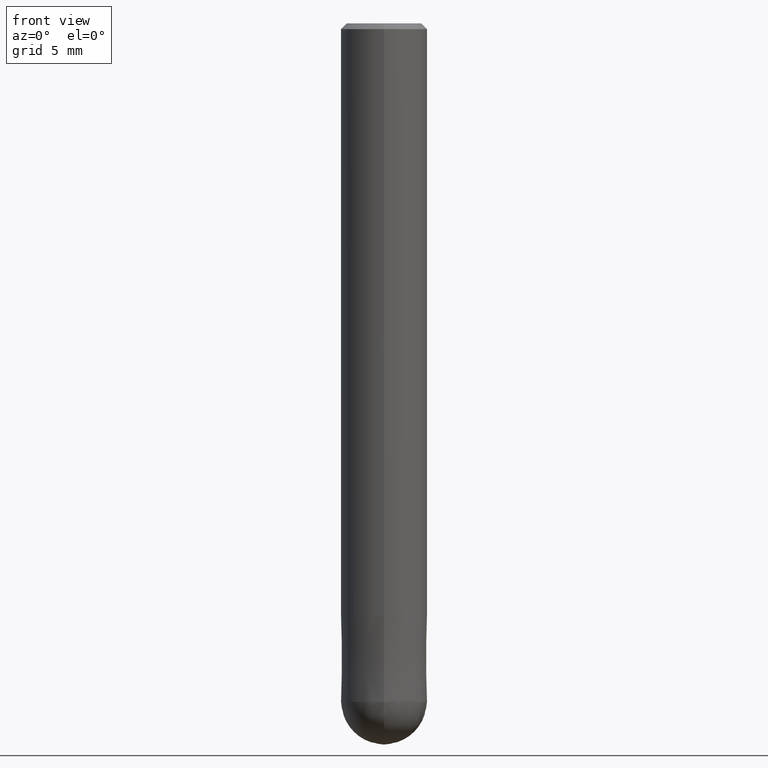
[diagram: clean part render]
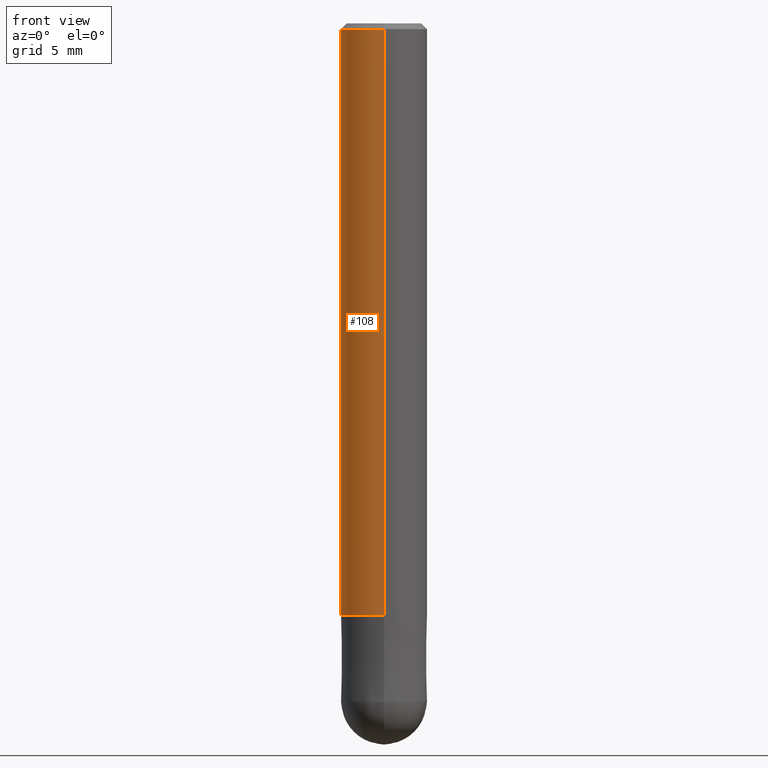
[diagram: same view with one face highlighted and labeled with its STEP entity id]
A machine part, front view. The second image highlights one B-rep face of the part: STEP entity #108.
In plain terms, the highlighted cylindrical surface (partial cylindrical patch) has radius 3 mm, axis along (-0, -0, 1).
Its self-contained STEP definition (entity closure, byte-faithful):
#80=VERTEX_POINT('',#176);
#82=VERTEX_POINT('',#178);
#98=VERTEX_POINT('',#195);
#102=EDGE_CURVE('',#130,#98,#200,.T.);
#108=ADVANCED_FACE('',(#208),#209,.T.);
#116=EDGE_CURVE('',#82,#130,#217,.T.);
#126=EDGE_CURVE('',#82,#80,#228,.T.);
#128=EDGE_CURVE('',#98,#80,#230,.T.);
#130=VERTEX_POINT('',#232);
#176=CARTESIAN_POINT('',(0.0,3.0,-41.0));
#178=CARTESIAN_POINT('',(3.67381906146713E-016,-3.0,-41.0));
#195=CARTESIAN_POINT('',(0.0,3.0,-0.399999999999999));
#200=CIRCLE('',#304,3.0);
#208=FACE_OUTER_BOUND('',#312,.T.);
#209=CYLINDRICAL_SURFACE('',#313,3.0);
#217=LINE('',#322,#323);
#228=CIRCLE('',#338,3.0);
#230=LINE('',#341,#342);
#232=CARTESIAN_POINT('',(3.67381906146713E-016,-3.0,-0.399999999999999));
#304=AXIS2_PLACEMENT_3D('',#407,#408,#409);
#312=EDGE_LOOP('',(#425,#426,#427,#428));
#313=AXIS2_PLACEMENT_3D('',#429,#430,#431);
#322=CARTESIAN_POINT('',(3.67381906146713E-016,-3.0,-20.7));
#323=VECTOR('',#436,1.0);
#338=AXIS2_PLACEMENT_3D('',#454,#455,#456);
#341=CARTESIAN_POINT('',(-3.67381906146713E-016,3.0,-20.7));
#342=VECTOR('',#457,1.0);
#407=CARTESIAN_POINT('',(0.0,0.0,-0.399999999999999));
#408=DIRECTION('',(0.0,0.0,-1.0));
#409=DIRECTION('',(0.0,1.0,0.0));
#425=ORIENTED_EDGE('',*,*,#128,.T.);
#426=ORIENTED_EDGE('',*,*,#126,.F.);
#427=ORIENTED_EDGE('',*,*,#116,.T.);
#428=ORIENTED_EDGE('',*,*,#102,.T.);
#429=CARTESIAN_POINT('',(0.0,0.0,-20.7));
#430=DIRECTION('',(-0.0,-0.0,1.0));
#431=DIRECTION('',(0.0,1.0,0.0));
#436=DIRECTION('',(-0.0,-0.0,1.0));
#454=CARTESIAN_POINT('',(0.0,0.0,-41.0));
#455=DIRECTION('',(0.0,0.0,-1.0));
#456=DIRECTION('',(0.0,1.0,0.0));
#457=DIRECTION('',(0.0,0.0,-1.0));